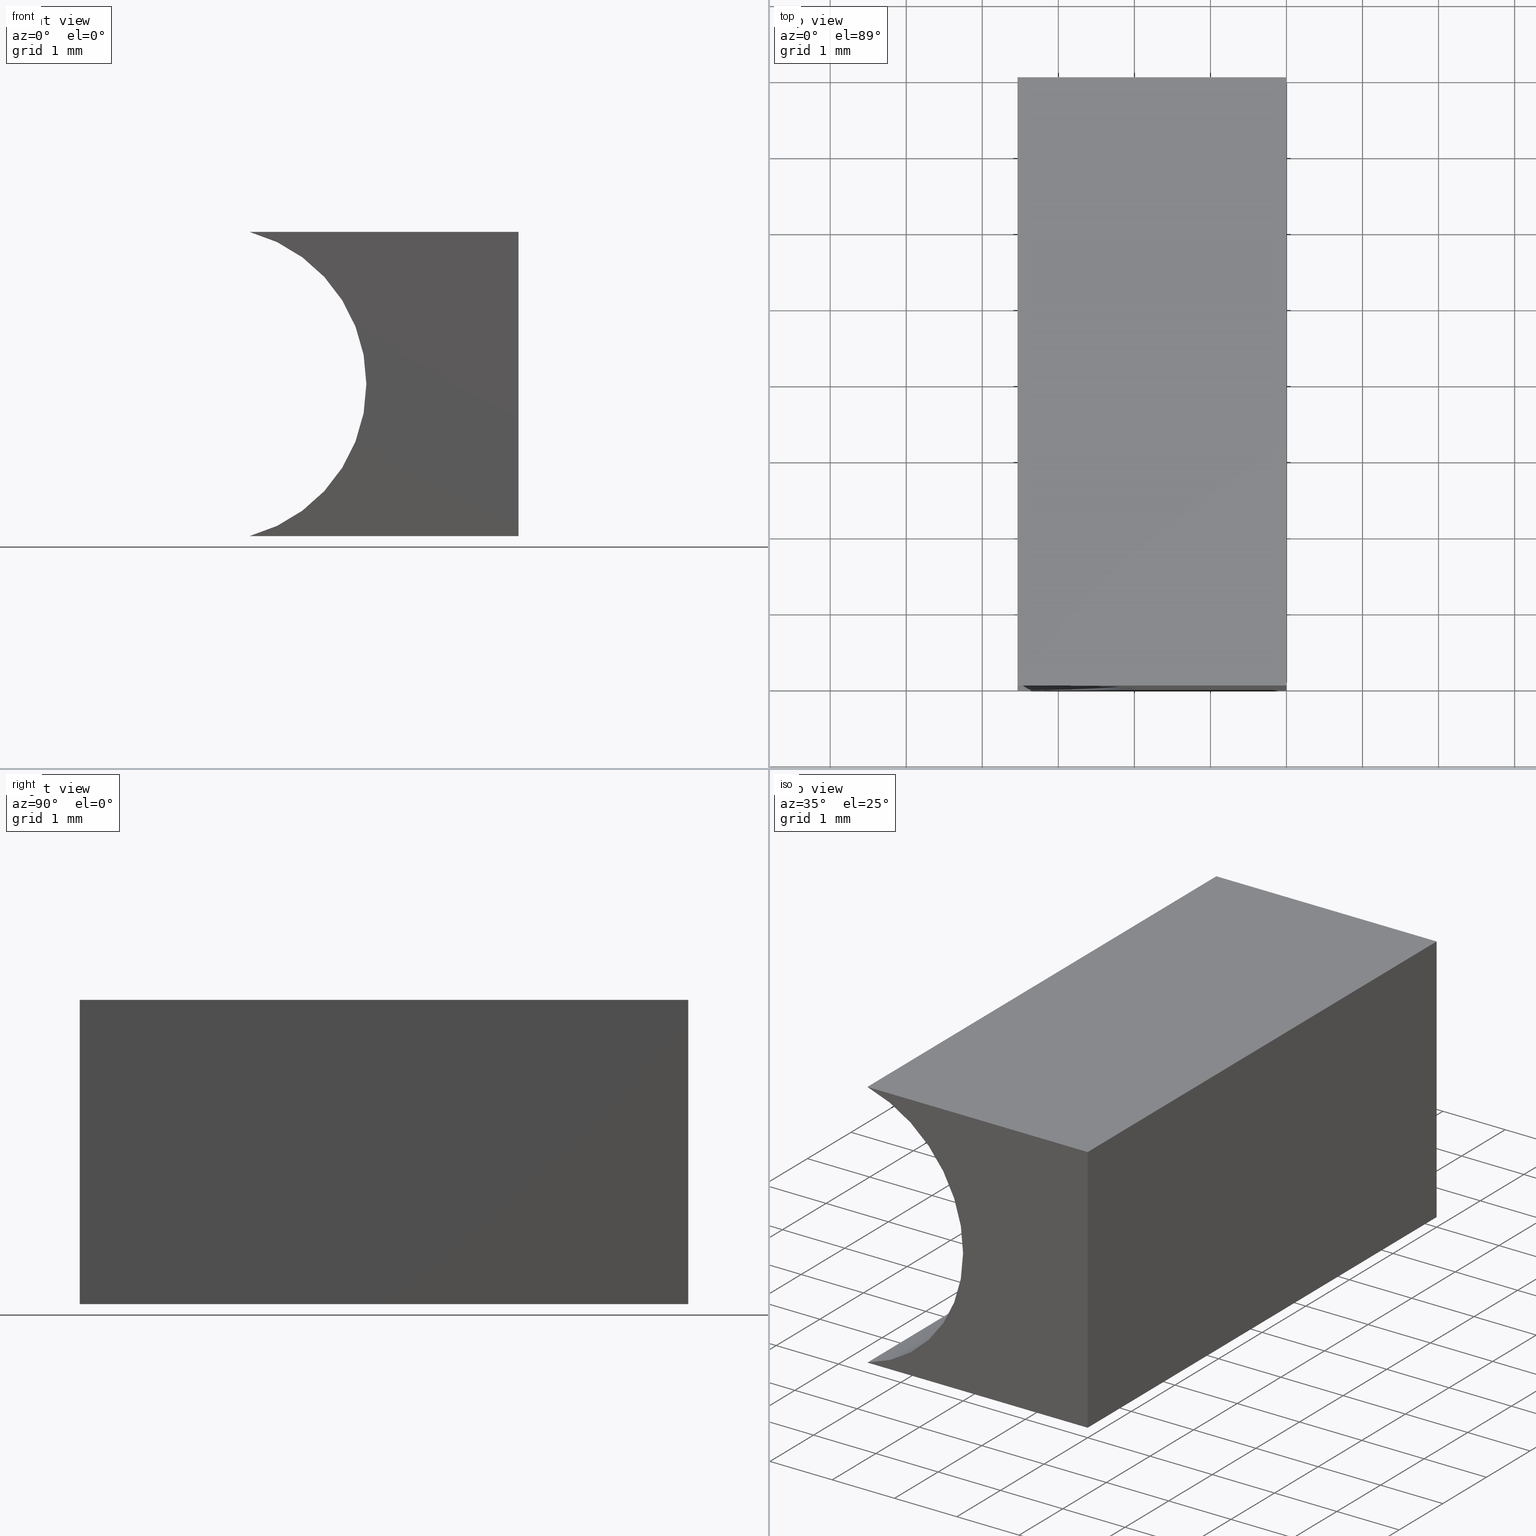
[diagram: canonical four-view strip — front | top / right | iso, engineering-drawing reading convention]
A machine part, canonical four-view strip (front | top / right | iso — engineering-drawing reading convention). The complete STEP part file that produces these views, byte-faithful:
ISO-10303-21;
HEADER;
FILE_DESCRIPTION (( 'STEP AP214' ),
    '1' );
FILE_NAME ('155332.STEP',
    '2019-06-27T02:18:36',
    ( 'user' ),
    ( '΢���й�' ),
    'SwSTEP 2.0',
    'SolidWorks 2016',
    '' );
FILE_SCHEMA (( 'AUTOMOTIVE_DESIGN' ));
ENDSEC;

DATA;
#1 = ADVANCED_FACE ( 'NONE', ( #107 ), #11, .T. ) ;
#2 = EDGE_CURVE ( 'NONE', #169, #151, #181, .T. ) ;
#3 = DIRECTION ( 'NONE',  ( 1.000000000000000000, 0.0000000000000000000, 0.0000000000000000000 ) ) ;
#4 = CARTESIAN_POINT ( 'NONE',  ( 0.0000000000000000000, 0.0000000000000000000, 4.000000000000000000 ) ) ;
#5 = ORIENTED_EDGE ( 'NONE', *, *, #2, .T. ) ;
#6 = FILL_AREA_STYLE ('',( #71 ) ) ;
#7 = CARTESIAN_POINT ( 'NONE',  ( -4.069999999999999400, 0.0000000000000000000, 2.000000000000000400 ) ) ;
#8 = CARTESIAN_POINT ( 'NONE',  ( 0.0000000000000000000, 0.0000000000000000000, 0.0000000000000000000 ) ) ;
#9 = DIRECTION ( 'NONE',  ( 1.000000000000000000, 0.0000000000000000000, -1.931507277844383500E-016 ) ) ;
#10 =( GEOMETRIC_REPRESENTATION_CONTEXT ( 3 ) GLOBAL_UNCERTAINTY_ASSIGNED_CONTEXT ( ( #156 ) ) GLOBAL_UNIT_ASSIGNED_CONTEXT ( ( #87, #175, #70 ) ) REPRESENTATION_CONTEXT ( 'NONE', 'WORKASPACE' ) );
#11 = PLANE ( 'NONE',  #126 ) ;
#12 = VECTOR ( 'NONE', #194, 1000.000000000000000 ) ;
#13 = DIRECTION ( 'NONE',  ( 0.0000000000000000000, 1.000000000000000000, 0.0000000000000000000 ) ) ;
#14 = LINE ( 'NONE', #168, #92 ) ;
#15 = EDGE_LOOP ( 'NONE', ( #123, #185, #199, #204 ) ) ;
#16 = PRESENTATION_STYLE_ASSIGNMENT (( #192 ) ) ;
#17 =( NAMED_UNIT ( * ) PLANE_ANGLE_UNIT ( ) SI_UNIT ( $, .RADIAN. ) );
#18 = ORIENTED_EDGE ( 'NONE', *, *, #200, .F. ) ;
#19 = CARTESIAN_POINT ( 'NONE',  ( 0.0000000000000000000, 8.000000000000000000, 4.000000000000000000 ) ) ;
#20 = DIRECTION ( 'NONE',  ( -0.0000000000000000000, -1.000000000000000000, -0.0000000000000000000 ) ) ;
#21 = DIRECTION ( 'NONE',  ( -0.0000000000000000000, -1.000000000000000000, -0.0000000000000000000 ) ) ;
#22 = DIRECTION ( 'NONE',  ( -1.000000000000000000, 0.0000000000000000000, -0.0000000000000000000 ) ) ;
#23 = PRODUCT ( '155332', '155332', '', ( #94 ) ) ;
#24 = FACE_OUTER_BOUND ( 'NONE', #42, .T. ) ;
#25 = VECTOR ( 'NONE', #190, 1000.000000000000000 ) ;
#26 = EDGE_LOOP ( 'NONE', ( #183, #36, #118, #5 ) ) ;
#27 = ORIENTED_EDGE ( 'NONE', *, *, #111, .F. ) ;
#28 =( GEOMETRIC_REPRESENTATION_CONTEXT ( 3 ) GLOBAL_UNCERTAINTY_ASSIGNED_CONTEXT ( ( #106 ) ) GLOBAL_UNIT_ASSIGNED_CONTEXT ( ( #133, #17, #115 ) ) REPRESENTATION_CONTEXT ( 'NONE', 'WORKASPACE' ) );
#29 = ADVANCED_BREP_SHAPE_REPRESENTATION ( '155332', ( #150, #128 ), #28 ) ;
#30 = ORIENTED_EDGE ( 'NONE', *, *, #108, .F. ) ;
#31 = VECTOR ( 'NONE', #55, 1000.000000000000000 ) ;
#32 =( NAMED_UNIT ( * ) PLANE_ANGLE_UNIT ( ) SI_UNIT ( $, .RADIAN. ) );
#33 = VECTOR ( 'NONE', #54, 1000.000000000000000 ) ;
#34 = DIRECTION ( 'NONE',  ( -1.000000000000000000, 0.0000000000000000000, 0.0000000000000000000 ) ) ;
#35 = CARTESIAN_POINT ( 'NONE',  ( -3.536239754196699900, 8.000000000000000000, 4.000000000000000000 ) ) ;
#36 = ORIENTED_EDGE ( 'NONE', *, *, #138, .T. ) ;
#37 = CARTESIAN_POINT ( 'NONE',  ( 0.0000000000000000000, 8.000000000000000000, 0.0000000000000000000 ) ) ;
#38 = DIRECTION ( 'NONE',  ( 0.0000000000000000000, 0.0000000000000000000, 1.000000000000000000 ) ) ;
#39 = DIRECTION ( 'NONE',  ( -1.000000000000000000, 0.0000000000000000000, 1.931507277844383500E-016 ) ) ;
#40 = LINE ( 'NONE', #19, #31 ) ;
#41 = CARTESIAN_POINT ( 'NONE',  ( 0.0000000000000000000, 8.000000000000000000, 0.0000000000000000000 ) ) ;
#42 = EDGE_LOOP ( 'NONE', ( #75, #141, #48, #193 ) ) ;
#43 = CARTESIAN_POINT ( 'NONE',  ( 0.0000000000000000000, 8.000000000000000000, 4.000000000000000000 ) ) ;
#44 = AXIS2_PLACEMENT_3D ( 'NONE', #98, #34, #134 ) ;
#45 = DIRECTION ( 'NONE',  ( 0.0000000000000000000, -0.0000000000000000000, 1.000000000000000000 ) ) ;
#46 = EDGE_CURVE ( 'NONE', #169, #171, #109, .T. ) ;
#47 = ORIENTED_EDGE ( 'NONE', *, *, #203, .F. ) ;
#48 = ORIENTED_EDGE ( 'NONE', *, *, #138, .F. ) ;
#49 = SURFACE_STYLE_FILL_AREA ( #172 ) ;
#50 = ADVANCED_FACE ( 'NONE', ( #62 ), #105, .F. ) ;
#51 = SHAPE_DEFINITION_REPRESENTATION ( #180, #29 ) ;
#52 = SURFACE_STYLE_USAGE ( .BOTH. , #161 ) ;
#53 = LINE ( 'NONE', #8, #12 ) ;
#54 = DIRECTION ( 'NONE',  ( 1.000000000000000000, -0.0000000000000000000, -0.0000000000000000000 ) ) ;
#55 = DIRECTION ( 'NONE',  ( 1.000000000000000000, -0.0000000000000000000, -0.0000000000000000000 ) ) ;
#56 = DIRECTION ( 'NONE',  ( -0.0000000000000000000, -1.000000000000000000, -0.0000000000000000000 ) ) ;
#57 = CARTESIAN_POINT ( 'NONE',  ( -4.069999999999999400, 0.0000000000000000000, 2.000000000000000400 ) ) ;
#58 = PLANE ( 'NONE',  #153 ) ;
#59 = AXIS2_PLACEMENT_3D ( 'NONE', #41, #121, #9 ) ;
#60 = FACE_OUTER_BOUND ( 'NONE', #81, .T. ) ;
#61 = CLOSED_SHELL ( 'NONE', ( #50, #67, #112, #186, #1, #130 ) ) ;
#62 = FACE_OUTER_BOUND ( 'NONE', #160, .T. ) ;
#63 = COLOUR_RGB ( '',1.000000000000000000, 1.000000000000000000, 1.000000000000000000 ) ;
#64 = STYLED_ITEM ( 'NONE', ( #90 ), #29 ) ;
#65 = ORIENTED_EDGE ( 'NONE', *, *, #46, .F. ) ;
#66 = VECTOR ( 'NONE', #68, 1000.000000000000000 ) ;
#67 = ADVANCED_FACE ( 'NONE', ( #24 ), #173, .F. ) ;
#68 = DIRECTION ( 'NONE',  ( -0.0000000000000000000, -0.0000000000000000000, -1.000000000000000000 ) ) ;
#69 = CARTESIAN_POINT ( 'NONE',  ( 0.0000000000000000000, 0.0000000000000000000, 4.000000000000000000 ) ) ;
#70 =( NAMED_UNIT ( * ) SI_UNIT ( $, .STERADIAN. ) SOLID_ANGLE_UNIT ( ) );
#71 = FILL_AREA_STYLE_COLOUR ( '', #63 ) ;
#72 = VERTEX_POINT ( 'NONE', #73 ) ;
#73 = CARTESIAN_POINT ( 'NONE',  ( -3.536239754196699900, 0.0000000000000000000, 4.000000000000000000 ) ) ;
#74 = PRESENTATION_LAYER_ASSIGNMENT (  '', '', ( #64 ) ) ;
#75 = ORIENTED_EDGE ( 'NONE', *, *, #111, .T. ) ;
#76 = LINE ( 'NONE', #174, #120 ) ;
#77 = ORIENTED_EDGE ( 'NONE', *, *, #167, .T. ) ;
#78 = EDGE_CURVE ( 'NONE', #125, #154, #14, .T. ) ;
#79 = LINE ( 'NONE', #116, #25 ) ;
#80 = APPLICATION_PROTOCOL_DEFINITION ( 'draft international standard', 'automotive_design', 1998, #187 ) ;
#81 = EDGE_LOOP ( 'NONE', ( #164, #65, #110, #77 ) ) ;
#82 = APPLICATION_CONTEXT ( 'automotive_design' ) ;
#83 = MECHANICAL_DESIGN_GEOMETRIC_PRESENTATION_REPRESENTATION (  '', ( #64 ), #93 ) ;
#84 = DIRECTION ( 'NONE',  ( -1.000000000000000000, 0.0000000000000000000, 1.931507277844383500E-016 ) ) ;
#85 = PRODUCT_DEFINITION_CONTEXT ( 'detailed design', #187, 'design' ) ;
#86 = VERTEX_POINT ( 'NONE', #177 ) ;
#87 =( LENGTH_UNIT ( ) NAMED_UNIT ( * ) SI_UNIT ( .MILLI., .METRE. ) );
#88 = DIRECTION ( 'NONE',  ( 0.0000000000000000000, 1.000000000000000000, 0.0000000000000000000 ) ) ;
#89 = DIRECTION ( 'NONE',  ( -0.0000000000000000000, -1.000000000000000000, -0.0000000000000000000 ) ) ;
#90 = PRESENTATION_STYLE_ASSIGNMENT (( #52 ) ) ;
#91 = VERTEX_POINT ( 'NONE', #119 ) ;
#92 = VECTOR ( 'NONE', #39, 1000.000000000000000 ) ;
#93 =( GEOMETRIC_REPRESENTATION_CONTEXT ( 3 ) GLOBAL_UNCERTAINTY_ASSIGNED_CONTEXT ( ( #143 ) ) GLOBAL_UNIT_ASSIGNED_CONTEXT ( ( #144, #32, #131 ) ) REPRESENTATION_CONTEXT ( 'NONE', 'WORKASPACE' ) );
#94 = PRODUCT_CONTEXT ( 'NONE', #82, 'mechanical' ) ;
#95 = SURFACE_STYLE_FILL_AREA ( #6 ) ;
#96 = APPLICATION_PROTOCOL_DEFINITION ( 'draft international standard', 'automotive_design', 1998, #82 ) ;
#97 = ORIENTED_EDGE ( 'NONE', *, *, #182, .T. ) ;
#98 = CARTESIAN_POINT ( 'NONE',  ( 0.0000000000000000000, 8.000000000000000000, 0.0000000000000000000 ) ) ;
#99 = SURFACE_SIDE_STYLE ('',( #95 ) ) ;
#100 = CARTESIAN_POINT ( 'NONE',  ( 0.0000000000000000000, 0.0000000000000000000, 0.0000000000000000000 ) ) ;
#101 = VECTOR ( 'NONE', #198, 1000.000000000000000 ) ;
#102 = PLANE ( 'NONE',  #170 ) ;
#103 = DIRECTION ( 'NONE',  ( 0.0000000000000000000, 0.0000000000000000000, -1.000000000000000000 ) ) ;
#104 = ORIENTED_EDGE ( 'NONE', *, *, #78, .F. ) ;
#105 = PLANE ( 'NONE',  #59 ) ;
#106 = UNCERTAINTY_MEASURE_WITH_UNIT (LENGTH_MEASURE( 1.000000000000000100E-005 ), #133, 'distance_accuracy_value', 'NONE');
#107 = FACE_OUTER_BOUND ( 'NONE', #26, .T. ) ;
#108 = EDGE_CURVE ( 'NONE', #171, #125, #53, .T. ) ;
#109 = LINE ( 'NONE', #43, #101 ) ;
#110 = ORIENTED_EDGE ( 'NONE', *, *, #195, .F. ) ;
#111 = EDGE_CURVE ( 'NONE', #154, #72, #139, .T. ) ;
#112 = ADVANCED_FACE ( 'NONE', ( #60 ), #58, .F. ) ;
#113 = FACE_OUTER_BOUND ( 'NONE', #15, .T. ) ;
#114 = DIRECTION ( 'NONE',  ( 0.0000000000000000000, 0.0000000000000000000, 1.000000000000000000 ) ) ;
#115 =( NAMED_UNIT ( * ) SI_UNIT ( $, .STERADIAN. ) SOLID_ANGLE_UNIT ( ) );
#116 = CARTESIAN_POINT ( 'NONE',  ( -3.536239754196699900, 8.000000000000000000, 8.673617379884035500E-016 ) ) ;
#117 = DIRECTION ( 'NONE',  ( 0.0000000000000000000, 0.0000000000000000000, 1.000000000000000000 ) ) ;
#118 = ORIENTED_EDGE ( 'NONE', *, *, #195, .T. ) ;
#119 = CARTESIAN_POINT ( 'NONE',  ( -3.536239754196699900, 8.000000000000000000, 8.673617379884035500E-016 ) ) ;
#120 = VECTOR ( 'NONE', #84, 1000.000000000000000 ) ;
#121 = DIRECTION ( 'NONE',  ( 1.931507277844383500E-016, -0.0000000000000000000, 1.000000000000000000 ) ) ;
#122 = AXIS2_PLACEMENT_3D ( 'NONE', #57, #152, #38 ) ;
#123 = ORIENTED_EDGE ( 'NONE', *, *, #108, .T. ) ;
#124 = CARTESIAN_POINT ( 'NONE',  ( -4.069999999999999400, 8.000000000000000000, 2.000000000000000400 ) ) ;
#125 = VERTEX_POINT ( 'NONE', #100 ) ;
#126 = AXIS2_PLACEMENT_3D ( 'NONE', #124, #13, #45 ) ;
#127 = COLOUR_RGB ( '',1.000000000000000000, 1.000000000000000000, 1.000000000000000000 ) ;
#128 = AXIS2_PLACEMENT_3D ( 'NONE', #191, #114, #3 ) ;
#129 = EDGE_LOOP ( 'NONE', ( #104, #30, #47, #27 ) ) ;
#130 = ADVANCED_FACE ( 'NONE', ( #142 ), #102, .F. ) ;
#131 =( NAMED_UNIT ( * ) SI_UNIT ( $, .STERADIAN. ) SOLID_ANGLE_UNIT ( ) );
#132 = AXIS2_PLACEMENT_3D ( 'NONE', #196, #89, #103 ) ;
#133 =( LENGTH_UNIT ( ) NAMED_UNIT ( * ) SI_UNIT ( .MILLI., .METRE. ) );
#134 = DIRECTION ( 'NONE',  ( 0.0000000000000000000, 0.0000000000000000000, 1.000000000000000000 ) ) ;
#135 = CARTESIAN_POINT ( 'NONE',  ( 0.0000000000000000000, 8.000000000000000000, 4.000000000000000000 ) ) ;
#136 = CARTESIAN_POINT ( 'NONE',  ( -4.069999999999999400, 8.000000000000000000, 2.000000000000000400 ) ) ;
#137 = DIRECTION ( 'NONE',  ( 0.0000000000000000000, 0.0000000000000000000, -1.000000000000000000 ) ) ;
#138 = EDGE_CURVE ( 'NONE', #91, #86, #178, .T. ) ;
#139 = CIRCLE ( 'NONE', #122, 2.069999999999999400 ) ;
#140 = PRODUCT_DEFINITION ( 'δ֪', '', #148, #85 ) ;
#141 = ORIENTED_EDGE ( 'NONE', *, *, #167, .F. ) ;
#142 = FACE_OUTER_BOUND ( 'NONE', #129, .T. ) ;
#143 = UNCERTAINTY_MEASURE_WITH_UNIT (LENGTH_MEASURE( 1.000000000000000100E-005 ), #144, 'distance_accuracy_value', 'NONE');
#144 =( LENGTH_UNIT ( ) NAMED_UNIT ( * ) SI_UNIT ( .MILLI., .METRE. ) );
#145 = FILL_AREA_STYLE_COLOUR ( '', #127 ) ;
#146 = ORIENTED_EDGE ( 'NONE', *, *, #184, .F. ) ;
#147 = PLANE ( 'NONE',  #44 ) ;
#148 = PRODUCT_DEFINITION_FORMATION_WITH_SPECIFIED_SOURCE ( '�κ�', '', #23, .NOT_KNOWN. ) ;
#149 = CARTESIAN_POINT ( 'NONE',  ( 0.0000000000000000000, 8.000000000000000000, 0.0000000000000000000 ) ) ;
#150 = MANIFOLD_SOLID_BREP ( '͹̨-����1', #61 ) ;
#151 = VERTEX_POINT ( 'NONE', #37 ) ;
#152 = DIRECTION ( 'NONE',  ( -0.0000000000000000000, -1.000000000000000000, -0.0000000000000000000 ) ) ;
#153 = AXIS2_PLACEMENT_3D ( 'NONE', #166, #137, #22 ) ;
#154 = VERTEX_POINT ( 'NONE', #165 ) ;
#155 = LINE ( 'NONE', #35, #197 ) ;
#156 = UNCERTAINTY_MEASURE_WITH_UNIT (LENGTH_MEASURE( 1.000000000000000100E-005 ), #87, 'distance_accuracy_value', 'NONE');
#157 = PRODUCT_RELATED_PRODUCT_CATEGORY ( 'part', '', ( #23 ) ) ;
#158 = ORIENTED_EDGE ( 'NONE', *, *, #78, .T. ) ;
#159 = VECTOR ( 'NONE', #56, 1000.000000000000000 ) ;
#160 = EDGE_LOOP ( 'NONE', ( #158, #18, #146, #97 ) ) ;
#161 = SURFACE_SIDE_STYLE ('',( #49 ) ) ;
#162 = AXIS2_PLACEMENT_3D ( 'NONE', #136, #21, #117 ) ;
#163 = CARTESIAN_POINT ( 'NONE',  ( 0.0000000000000000000, 8.000000000000000000, 0.0000000000000000000 ) ) ;
#164 = ORIENTED_EDGE ( 'NONE', *, *, #203, .T. ) ;
#165 = CARTESIAN_POINT ( 'NONE',  ( -3.536239754196699900, 0.0000000000000000000, 8.673617379884035500E-016 ) ) ;
#166 = CARTESIAN_POINT ( 'NONE',  ( 0.0000000000000000000, 8.000000000000000000, 4.000000000000000000 ) ) ;
#167 = EDGE_CURVE ( 'NONE', #86, #72, #155, .T. ) ;
#168 = CARTESIAN_POINT ( 'NONE',  ( 0.0000000000000000000, 0.0000000000000000000, 0.0000000000000000000 ) ) ;
#169 = VERTEX_POINT ( 'NONE', #135 ) ;
#170 = AXIS2_PLACEMENT_3D ( 'NONE', #7, #88, #176 ) ;
#171 = VERTEX_POINT ( 'NONE', #4 ) ;
#172 = FILL_AREA_STYLE ('',( #145 ) ) ;
#173 = CYLINDRICAL_SURFACE ( 'NONE', #132, 2.069999999999999400 ) ;
#174 = CARTESIAN_POINT ( 'NONE',  ( 0.0000000000000000000, 8.000000000000000000, 0.0000000000000000000 ) ) ;
#175 =( NAMED_UNIT ( * ) PLANE_ANGLE_UNIT ( ) SI_UNIT ( $, .RADIAN. ) );
#176 = DIRECTION ( 'NONE',  ( 0.0000000000000000000, -0.0000000000000000000, 1.000000000000000000 ) ) ;
#177 = CARTESIAN_POINT ( 'NONE',  ( -3.536239754196699900, 8.000000000000000000, 4.000000000000000000 ) ) ;
#178 = CIRCLE ( 'NONE', #162, 2.069999999999999400 ) ;
#179 = STYLED_ITEM ( 'NONE', ( #16 ), #150 ) ;
#180 = PRODUCT_DEFINITION_SHAPE ( 'NONE', 'NONE',  #140 ) ;
#181 = LINE ( 'NONE', #163, #66 ) ;
#182 = EDGE_CURVE ( 'NONE', #151, #125, #201, .T. ) ;
#183 = ORIENTED_EDGE ( 'NONE', *, *, #184, .T. ) ;
#184 = EDGE_CURVE ( 'NONE', #151, #91, #76, .T. ) ;
#185 = ORIENTED_EDGE ( 'NONE', *, *, #182, .F. ) ;
#186 = ADVANCED_FACE ( 'NONE', ( #113 ), #147, .F. ) ;
#187 = APPLICATION_CONTEXT ( 'automotive_design' ) ;
#188 = PRESENTATION_LAYER_ASSIGNMENT (  '', '', ( #179 ) ) ;
#189 = LINE ( 'NONE', #69, #33 ) ;
#190 = DIRECTION ( 'NONE',  ( -0.0000000000000000000, -1.000000000000000000, -0.0000000000000000000 ) ) ;
#191 = CARTESIAN_POINT ( 'NONE',  ( 0.0000000000000000000, 0.0000000000000000000, 0.0000000000000000000 ) ) ;
#192 = SURFACE_STYLE_USAGE ( .BOTH. , #99 ) ;
#193 = ORIENTED_EDGE ( 'NONE', *, *, #200, .T. ) ;
#194 = DIRECTION ( 'NONE',  ( -0.0000000000000000000, -0.0000000000000000000, -1.000000000000000000 ) ) ;
#195 = EDGE_CURVE ( 'NONE', #86, #169, #40, .T. ) ;
#196 = CARTESIAN_POINT ( 'NONE',  ( -4.069999999999999400, 8.000000000000000000, 2.000000000000000400 ) ) ;
#197 = VECTOR ( 'NONE', #20, 1000.000000000000000 ) ;
#198 = DIRECTION ( 'NONE',  ( -0.0000000000000000000, -1.000000000000000000, -0.0000000000000000000 ) ) ;
#199 = ORIENTED_EDGE ( 'NONE', *, *, #2, .F. ) ;
#200 = EDGE_CURVE ( 'NONE', #91, #154, #79, .T. ) ;
#201 = LINE ( 'NONE', #149, #159 ) ;
#202 = MECHANICAL_DESIGN_GEOMETRIC_PRESENTATION_REPRESENTATION (  '', ( #179 ), #10 ) ;
#203 = EDGE_CURVE ( 'NONE', #72, #171, #189, .T. ) ;
#204 = ORIENTED_EDGE ( 'NONE', *, *, #46, .T. ) ;
ENDSEC;
END-ISO-10303-21;
